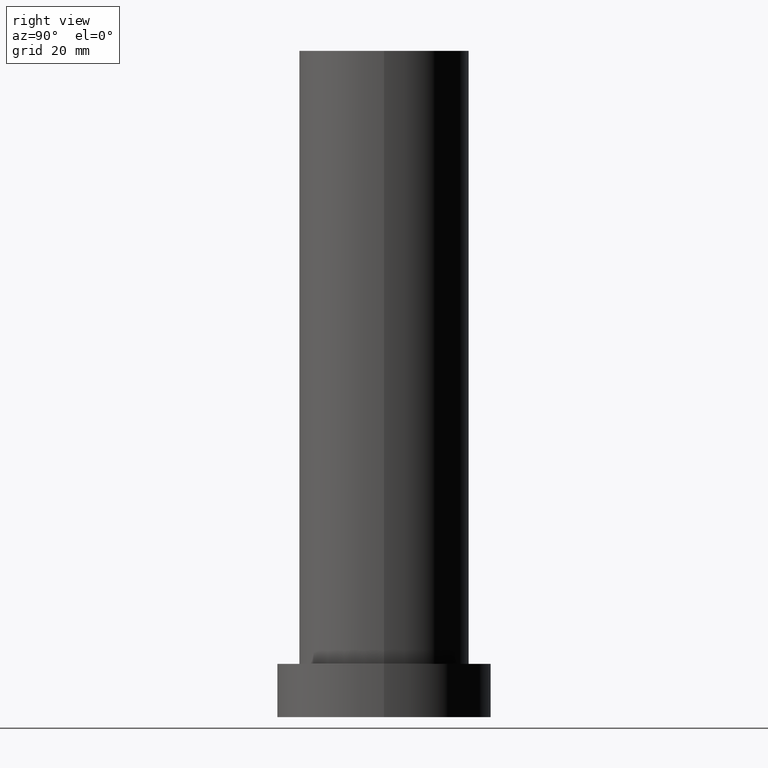
[diagram: clean part render]
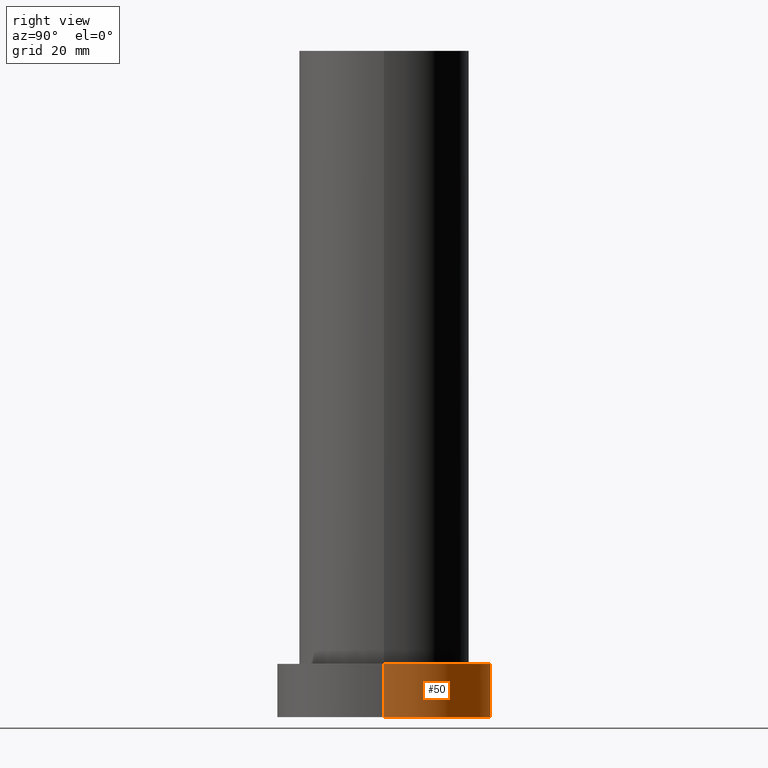
[diagram: same view with one face highlighted and labeled with its STEP entity id]
A machine part, right view. The second image highlights one B-rep face of the part: STEP entity #50.
In plain terms, the highlighted cylindrical surface (partial cylindrical patch) has radius 20 mm, axis along (-0, -0, -1).
Its self-contained STEP definition (entity closure, byte-faithful):
#3 = CARTESIAN_POINT ( 'NONE',  ( 20.00000000000000000, 2.449293598294706513E-15, 0.000000000000000000 ) ) ;
#5 = VERTEX_POINT ( 'NONE', #142 ) ;
#7 = ORIENTED_EDGE ( 'NONE', *, *, #92, .T. ) ;
#13 = LINE ( 'NONE', #104, #189 ) ;
#14 = DIRECTION ( 'NONE',  ( 1.000000000000000000, 0.000000000000000000, 0.000000000000000000 ) ) ;
#15 = DIRECTION ( 'NONE',  ( -1.000000000000000000, 0.000000000000000000, 0.000000000000000000 ) ) ;
#18 = ORIENTED_EDGE ( 'NONE', *, *, #237, .F. ) ;
#28 = AXIS2_PLACEMENT_3D ( 'NONE', #220, #36, #207 ) ;
#36 = DIRECTION ( 'NONE',  ( 0.000000000000000000, 0.000000000000000000, 1.000000000000000000 ) ) ;
#37 = ORIENTED_EDGE ( 'NONE', *, *, #216, .F. ) ;
#38 = ORIENTED_EDGE ( 'NONE', *, *, #203, .T. ) ;
#43 = VERTEX_POINT ( 'NONE', #208 ) ;
#50 = ADVANCED_FACE ( 'NONE', ( #152 ), #52, .T. ) ;
#52 = CYLINDRICAL_SURFACE ( 'NONE', #131, 20.00000000000000000 ) ;
#69 = CIRCLE ( 'NONE', #28, 20.00000000000000000 ) ;
#89 = EDGE_LOOP ( 'NONE', ( #18, #38, #7, #37 ) ) ;
#92 = EDGE_CURVE ( 'NONE', #95, #153, #69, .T. ) ;
#95 = VERTEX_POINT ( 'NONE', #3 ) ;
#104 = CARTESIAN_POINT ( 'NONE',  ( -20.00000000000000000, 0.000000000000000000, 10.00000000000000000 ) ) ;
#130 = DIRECTION ( 'NONE',  ( -0.000000000000000000, -0.000000000000000000, -1.000000000000000000 ) ) ;
#131 = AXIS2_PLACEMENT_3D ( 'NONE', #201, #130, #15 ) ;
#142 = CARTESIAN_POINT ( 'NONE',  ( 20.00000000000000000, 2.449293598294706513E-15, 10.00000000000000000 ) ) ;
#152 = FACE_OUTER_BOUND ( 'NONE', #89, .T. ) ;
#153 = VERTEX_POINT ( 'NONE', #159 ) ;
#159 = CARTESIAN_POINT ( 'NONE',  ( -20.00000000000000000, 0.000000000000000000, 0.000000000000000000 ) ) ;
#168 = DIRECTION ( 'NONE',  ( 0.000000000000000000, 0.000000000000000000, 1.000000000000000000 ) ) ;
#187 = DIRECTION ( 'NONE',  ( -0.000000000000000000, -0.000000000000000000, -1.000000000000000000 ) ) ;
#189 = VECTOR ( 'NONE', #192, 1000.000000000000000 ) ;
#191 = LINE ( 'NONE', #210, #199 ) ;
#192 = DIRECTION ( 'NONE',  ( -0.000000000000000000, -0.000000000000000000, -1.000000000000000000 ) ) ;
#197 = CARTESIAN_POINT ( 'NONE',  ( 0.000000000000000000, 0.000000000000000000, 10.00000000000000000 ) ) ;
#199 = VECTOR ( 'NONE', #187, 1000.000000000000000 ) ;
#200 = AXIS2_PLACEMENT_3D ( 'NONE', #197, #168, #14 ) ;
#201 = CARTESIAN_POINT ( 'NONE',  ( 0.000000000000000000, 0.000000000000000000, 10.00000000000000000 ) ) ;
#203 = EDGE_CURVE ( 'NONE', #5, #95, #191, .T. ) ;
#207 = DIRECTION ( 'NONE',  ( 1.000000000000000000, 0.000000000000000000, 0.000000000000000000 ) ) ;
#208 = CARTESIAN_POINT ( 'NONE',  ( -20.00000000000000000, 0.000000000000000000, 10.00000000000000000 ) ) ;
#210 = CARTESIAN_POINT ( 'NONE',  ( 20.00000000000000000, 2.449293598294706513E-15, 10.00000000000000000 ) ) ;
#216 = EDGE_CURVE ( 'NONE', #43, #153, #13, .T. ) ;
#220 = CARTESIAN_POINT ( 'NONE',  ( 0.000000000000000000, 0.000000000000000000, 0.000000000000000000 ) ) ;
#237 = EDGE_CURVE ( 'NONE', #5, #43, #253, .T. ) ;
#253 = CIRCLE ( 'NONE', #200, 20.00000000000000000 ) ;